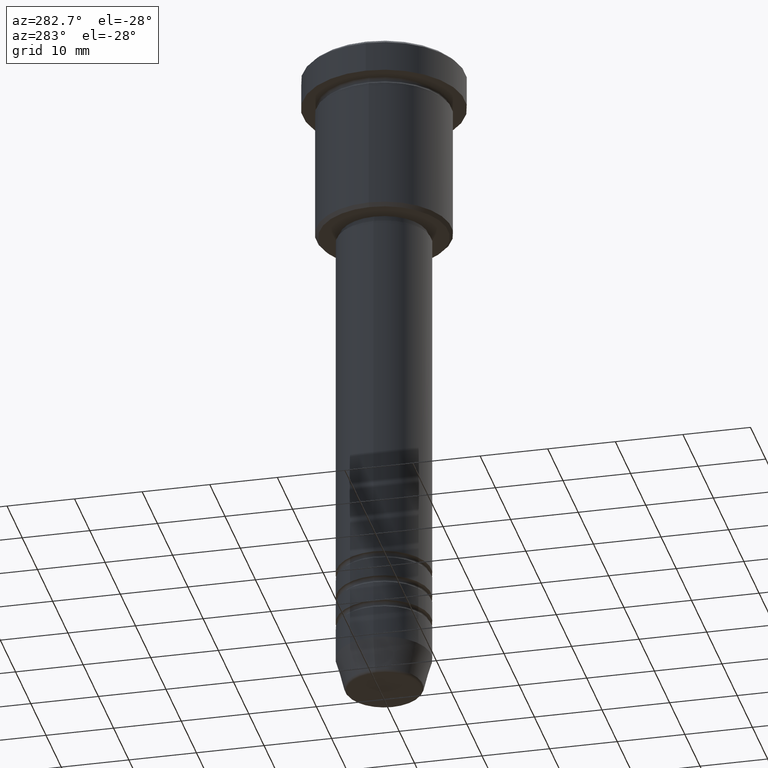
[diagram: clean part render]
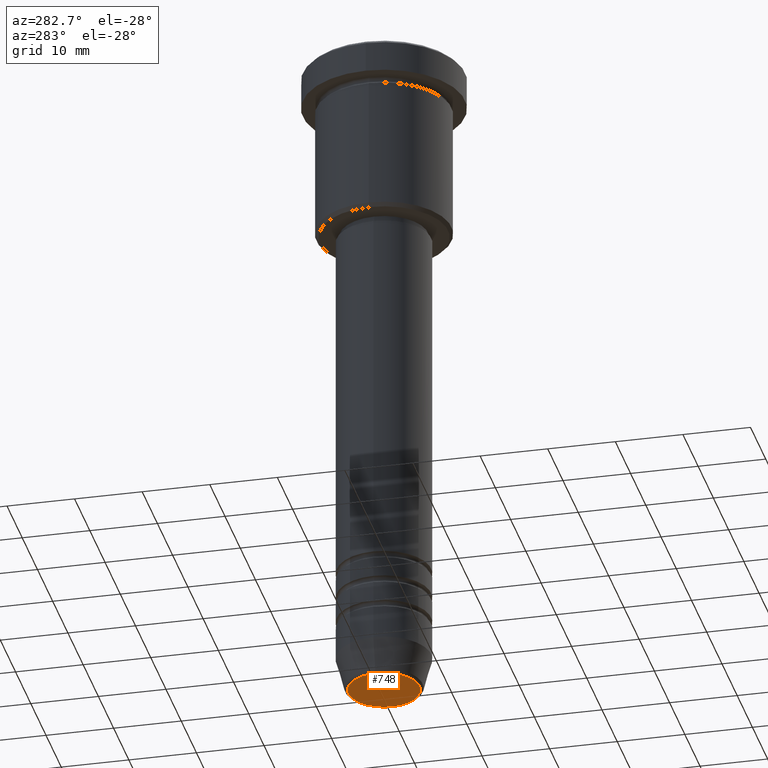
[diagram: same view with one face highlighted and labeled with its STEP entity id]
A machine part, auxiliary view. The second image highlights one B-rep face of the part: STEP entity #748.
In plain terms, the highlighted planar face has unit normal (0, -0, 1).
Its self-contained STEP definition (entity closure, byte-faithful):
#69 = DIRECTION ( 'NONE',  ( 0.000000000000000000, -0.000000000000000000, 1.000000000000000000 ) ) ;
#87 = VERTEX_POINT ( 'NONE', #1133 ) ;
#111 = DIRECTION ( 'NONE',  ( 1.000000000000000000, 0.000000000000000000, 0.000000000000000000 ) ) ;
#163 = CARTESIAN_POINT ( 'NONE',  ( 0.000000000000000000, 0.000000000000000000, -100.0000000000000000 ) ) ;
#166 = CARTESIAN_POINT ( 'NONE',  ( 0.000000000000000000, 0.000000000000000000, -100.0000000000000000 ) ) ;
#167 = DIRECTION ( 'NONE',  ( 1.000000000000000000, 0.000000000000000000, 0.000000000000000000 ) ) ;
#249 = CIRCLE ( 'NONE', #897, 5.276590543854903004 ) ;
#254 = EDGE_LOOP ( 'NONE', ( #508, #562 ) ) ;
#297 = CARTESIAN_POINT ( 'NONE',  ( 0.000000000000000000, 0.000000000000000000, -100.0000000000000000 ) ) ;
#339 = PLANE ( 'NONE',  #511 ) ;
#455 = VERTEX_POINT ( 'NONE', #902 ) ;
#476 = CIRCLE ( 'NONE', #763, 5.276590543854903004 ) ;
#508 = ORIENTED_EDGE ( 'NONE', *, *, #894, .T. ) ;
#511 = AXIS2_PLACEMENT_3D ( 'NONE', #163, #69, #167 ) ;
#535 = FACE_OUTER_BOUND ( 'NONE', #254, .T. ) ;
#562 = ORIENTED_EDGE ( 'NONE', *, *, #1104, .T. ) ;
#637 = DIRECTION ( 'NONE',  ( 0.000000000000000000, 0.000000000000000000, -1.000000000000000000 ) ) ;
#712 = DIRECTION ( 'NONE',  ( 1.000000000000000000, 0.000000000000000000, 0.000000000000000000 ) ) ;
#748 = ADVANCED_FACE ( 'NONE', ( #535 ), #339, .F. ) ;
#763 = AXIS2_PLACEMENT_3D ( 'NONE', #166, #637, #712 ) ;
#894 = EDGE_CURVE ( 'NONE', #87, #455, #249, .T. ) ;
#897 = AXIS2_PLACEMENT_3D ( 'NONE', #297, #929, #111 ) ;
#902 = CARTESIAN_POINT ( 'NONE',  ( -5.276590543854903004, 6.757689212787765916E-16, -100.0000000000000000 ) ) ;
#929 = DIRECTION ( 'NONE',  ( 0.000000000000000000, 0.000000000000000000, -1.000000000000000000 ) ) ;
#1104 = EDGE_CURVE ( 'NONE', #455, #87, #476, .T. ) ;
#1133 = CARTESIAN_POINT ( 'NONE',  ( 5.276590543854903004, 0.000000000000000000, -100.0000000000000000 ) ) ;